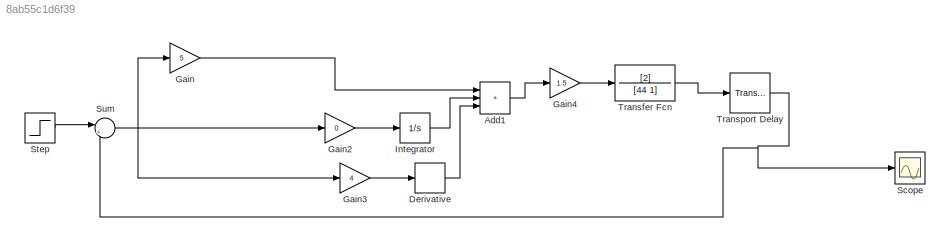
MODEL slx_8ab55c1d6f39
KIND model
CONFIG AbsTol = auto
CONFIG EnableMultiTasking = off
CONFIG FixedStep = auto
CONFIG MaxStep = auto
CONFIG MinStep = auto
CONFIG RelTol = 1e-3
CONFIG SampleTimeConstraint = Unconstrained
CONFIG SolverName = VariableStepAuto
CONFIG StartTime = 0.0
CONFIG StopTime = 200
BLOCK [Sum] Add1
  IconShape = rectangular
  Inputs = +++
  Ports = [3, 1]
BLOCK [Derivative] Derivative
  NameLocation = left
BLOCK [Gain] Gain
  Gain = 5
  NameLocation = top
BLOCK [Gain] Gain2
  Gain = 0
BLOCK [Gain] Gain3
  Gain = 4
BLOCK [Gain] Gain4
  Gain = 1.5
BLOCK [Integrator] Integrator
  Ports = [1, 1]
BLOCK [Scope] Scope
  Floating = off
  NumInputPorts = 1
  Ports = [1]
  ScopeSpecificationString = Simulink.scopes.TimeScopeBlockCfg('CurrentConfiguration', extmgr.ConfigurationSet(extmgr.Configuration('Core','General UI',true),extmgr.Configuration('Core','Source UI',true),extmgr.Configuration('Sources','WiredSimulink',true),extmgr.Configuration('Visuals','Time Domain',true,'SerializedDisplays',{struct('MinYLimReal','-16112923018183459631503826506534820545128514503835648.00000','MaxYLimReal','4...<+1790ch>
BLOCK [Step] Step
  Before = 1
  SampleTime = 0.0001
BLOCK [Sum] Sum
  Inputs = |+-
  Ports = [2, 1]
BLOCK [TransferFcn] Transfer Fcn
  Denominator = [44 1]
  Numerator = [2]
BLOCK [TransportDelay] Transport Delay
  Ports = [1, 1]
LINE Add1:1 -> Gain4:1
LINE Derivative:1 -> Add1:3
LINE Gain2:1 -> Integrator:1
LINE Gain3:1 -> Derivative:1
LINE Gain4:1 -> Transfer Fcn:1
LINE Gain:1 -> Add1:1
LINE Integrator:1 -> Add1:2
LINE Step:1 -> Sum:1
NET Sum:1 -> Gain2:1, Gain3:1, Gain:1
LINE Transfer Fcn:1 -> Transport Delay:1
NET Transport Delay:1 -> Scope:1, Sum:2
note: NET lines group one-source signal fan-out (src -> all destinations, sorted); 1:1 wires keep LINE
